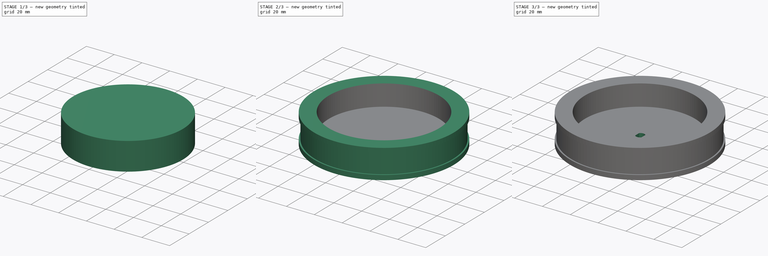
[diagram: build sequence overview — one tinted view per stage of 3, left to right]
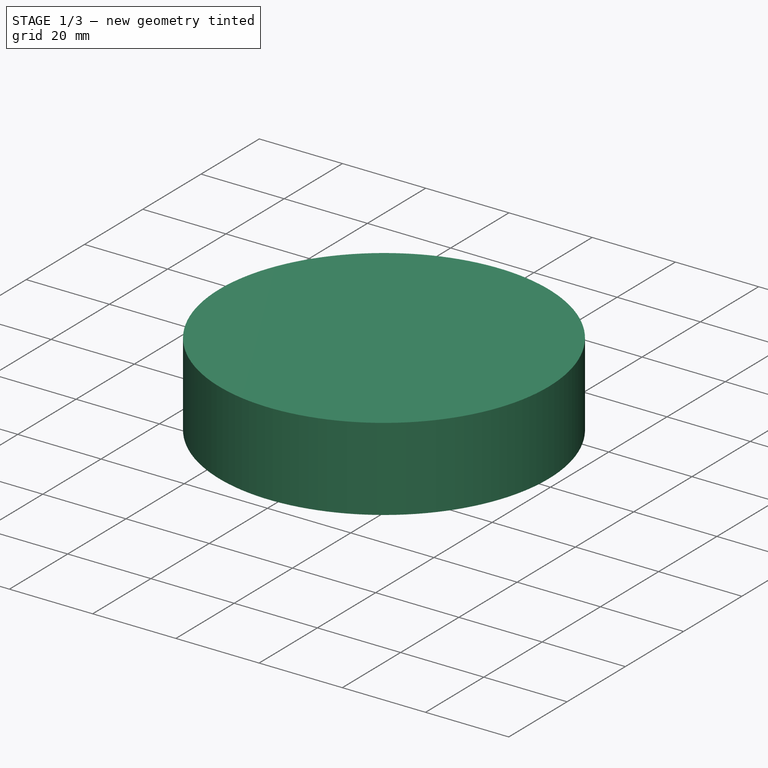
[diagram: stage 1 of 3 — iso view after this stage's code; geometry added in this stage tinted green]
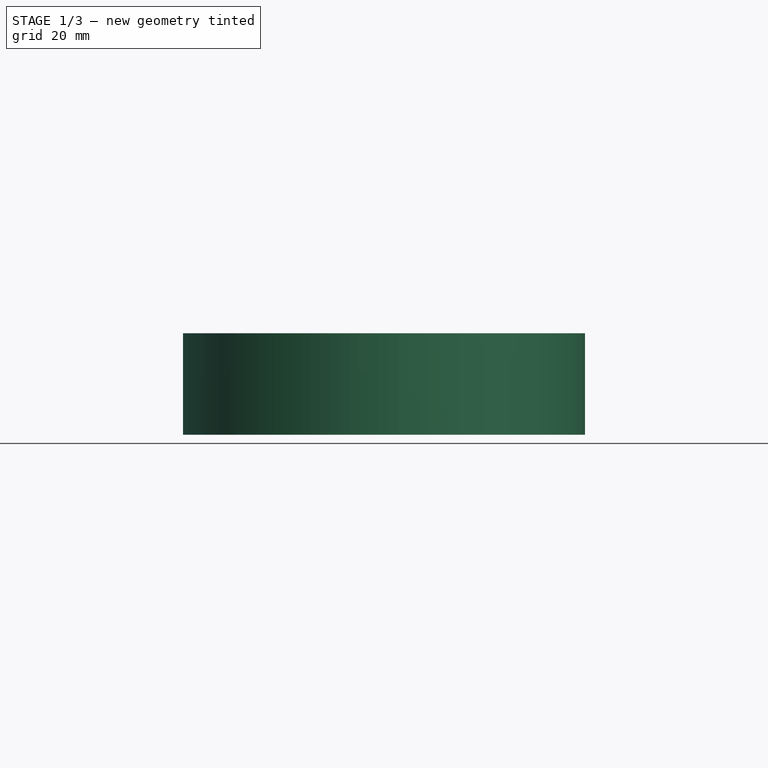
[diagram: stage 1 of 3 — front view after this stage's code; geometry added in this stage tinted green]
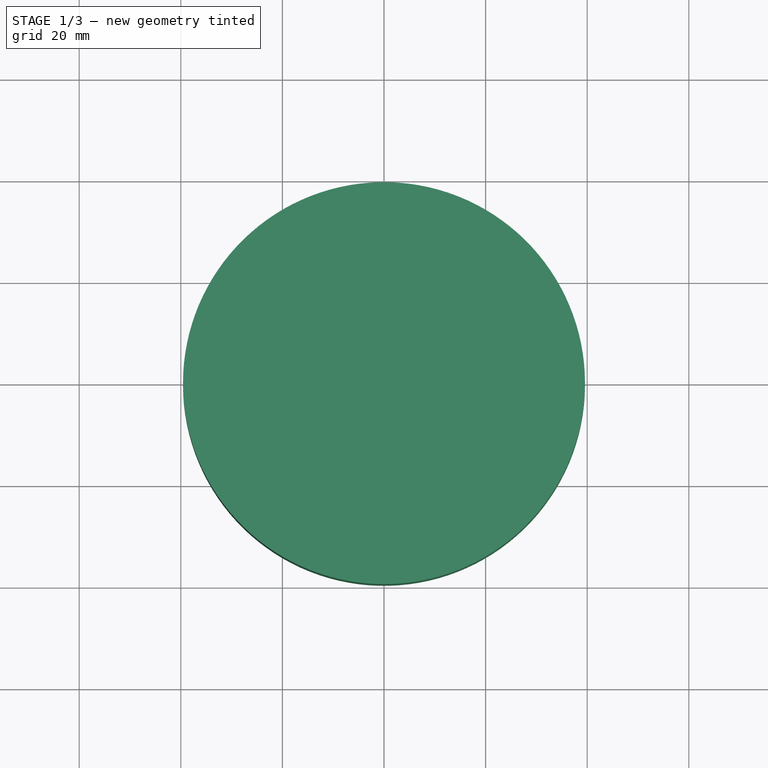
[diagram: stage 1 of 3 — top view after this stage's code; geometry added in this stage tinted green]
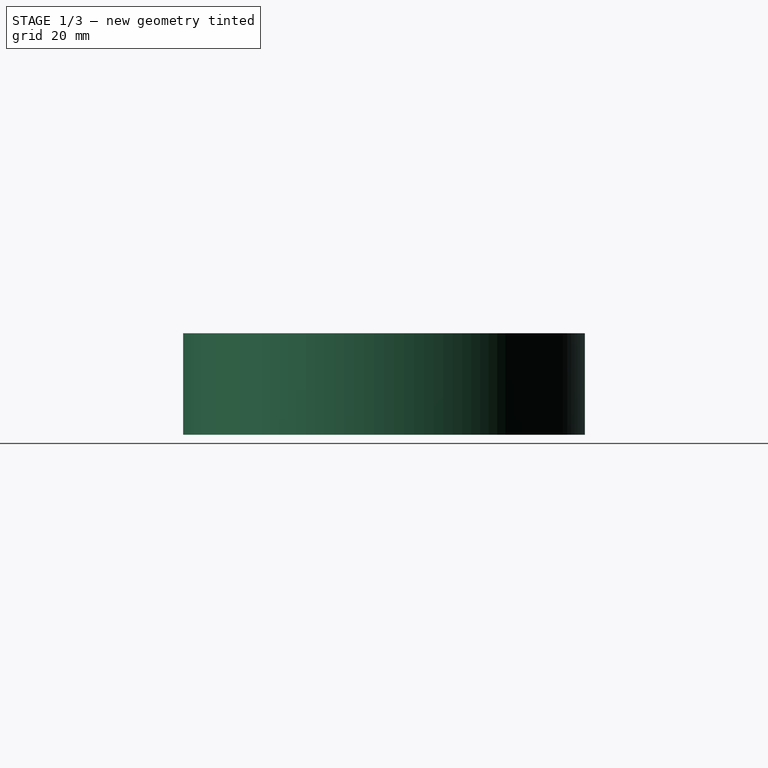
[diagram: stage 1 of 3 — right view after this stage's code; geometry added in this stage tinted green]
FCSTD DOCUMENT  (FreeCAD 0.20R29410 (Git))
Label: Rueda trasera
License: Creative Commons Attribution-ShareAlike
LicenseURL: http://creativecommons.org/licenses/by-sa/4.0/
objects: Sketcher::SketchObject×3, Part::Extrusion×2, Part::Cut×2, Part::Revolution×1
note: 8 computed .brp shape members not serialized (recipe doc carries the construction recipe); baked Part::Feature solids carry a one-line shape summary decoded from their .brp

FEATURE [Sketcher::SketchObject] Sketch
  FullyConstrained = false
  Placement = pos=(0,0,0) rot=(1,0,0;1.5708rad)
  sketch-geometry (8):
    g0: LineSegment StartX=0 StartY=0 StartZ=0 EndX=50.12 EndY=0 EndZ=0
    g1: LineSegment StartX=50.12 StartY=0 StartZ=0 EndX=50.12 EndY=3.35549 EndZ=0
    g2: LineSegment StartX=0 StartY=0 StartZ=0 EndX=0 EndY=20.92 EndZ=0
    g3: LineSegment StartX=0 StartY=20.92 StartZ=0 EndX=50.12 EndY=20.92 EndZ=0
    g4: LineSegment StartX=50.12 StartY=20.92 StartZ=0 EndX=50.12 EndY=17.5645 EndZ=0
    g5: LineSegment StartX=50.12 StartY=17.5645 StartZ=0 EndX=49.1 EndY=17.5645 EndZ=0
    g6: LineSegment StartX=50.12 StartY=3.35549 StartZ=0 EndX=49.1 EndY=3.35549 EndZ=0
    g7: LineSegment StartX=49.1 StartY=3.35549 StartZ=0 EndX=49.1 EndY=17.5645 EndZ=0
  constraints (22):
    c: Coincident(g-1,g0)
    c: PointOnObject(g0,g-1)
    c: Coincident(g0,g1)
    c: Vertical(g1)
    c: DistanceX(g0,g0) = 50.12
    c: Coincident(g0,g2)
    c: PointOnObject(g2,g-2)
    c: Coincident(g2,g3)
    c: Horizontal(g3)
    c: Equal(g0,g3)
    c: Coincident(g4,g3)
    c: Vertical(g4)
    c: Equal(g1,g4)
    c: Coincident(g5,g4)
    c: Horizontal(g5)
    c: Coincident(g6,g1)
    c: Horizontal(g6)
    c: Coincident(g7,g6)
    c: Coincident(g7,g5)
    c: Vertical(g7)
    c: DistanceY(g2,g2) = 20.92
    c: DistanceX(g5,g5) = 1.02
FEATURE [Part::Revolution] Revolve
  Angle = 360
  Axis = (0,0,1)
  Base = (0,0,0)
  FaceMakerClass = Part::FaceMakerBullseye
  Solid = true
  Source = -> Sketch
  Symmetric = false
FEATURE [Sketcher::SketchObject] Sketch001
  FullyConstrained = false
  MapMode = 5
  Placement = pos=(0,0,20.92) rot=(0,0,1;0rad)
  Support = -> [Revolve]
  sketch-geometry (1):
    g0: Circle CenterX=0 CenterY=0 CenterZ=0 NormalX=0 NormalY=0 NormalZ=1 AngleXU=0 Radius=39.5662
  constraints (1):
    c: Coincident(g0,g-1)
FEATURE [Part::Extrusion] Extrude
  Base = -> Sketch001
  Dir = (0,0,1)
  DirMode = 2
  FaceMakerClass = Part::FaceMakerBullseye
  LengthFwd = 20
  LengthRev = 0
  Placement = pos=(0,0,-15.1) rot=(0,0,1;0rad)
  Solid = true
  Symmetric = false
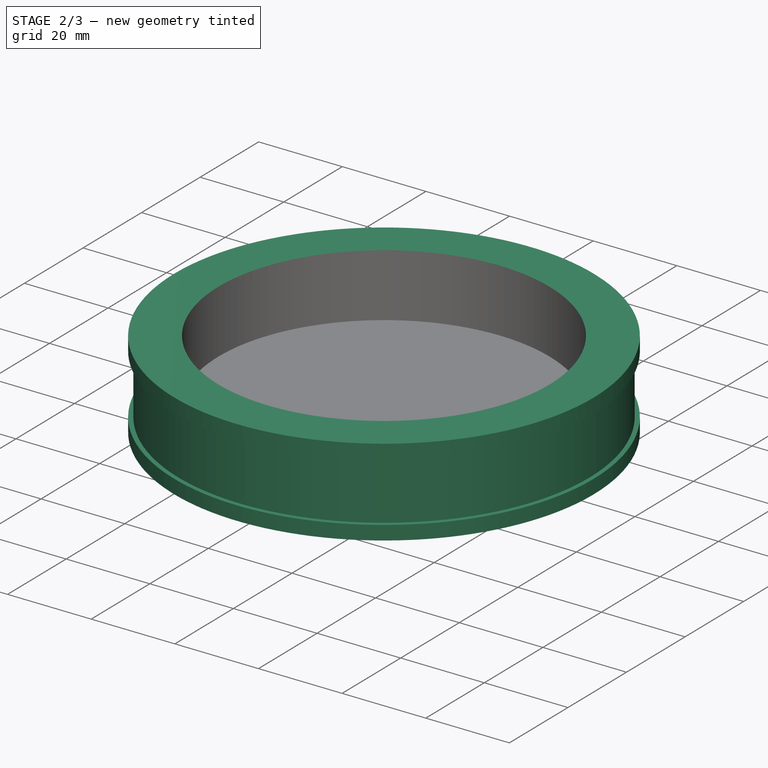
[diagram: stage 2 of 3 — iso view after this stage's code; geometry added in this stage tinted green]
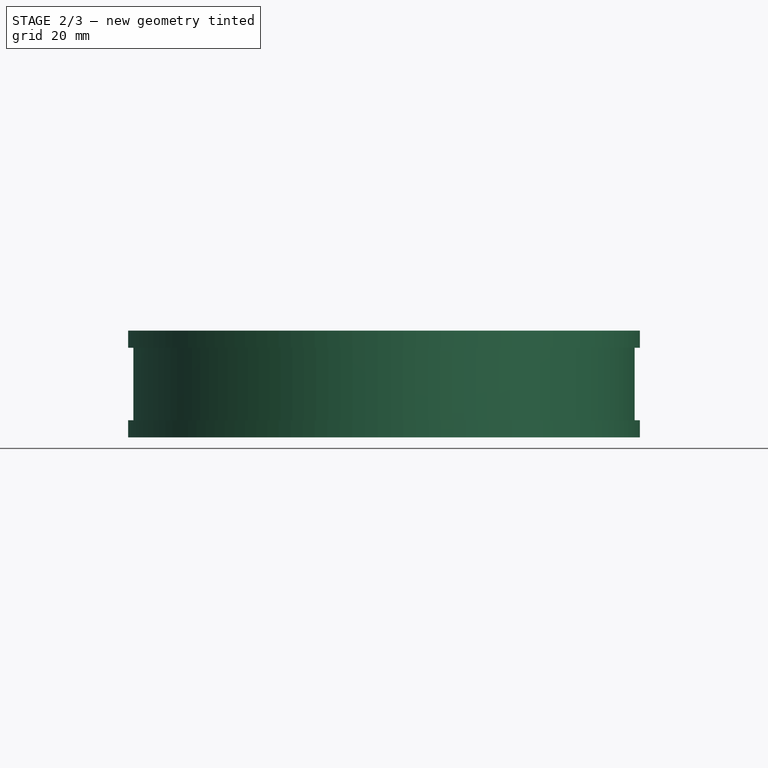
[diagram: stage 2 of 3 — front view after this stage's code; geometry added in this stage tinted green]
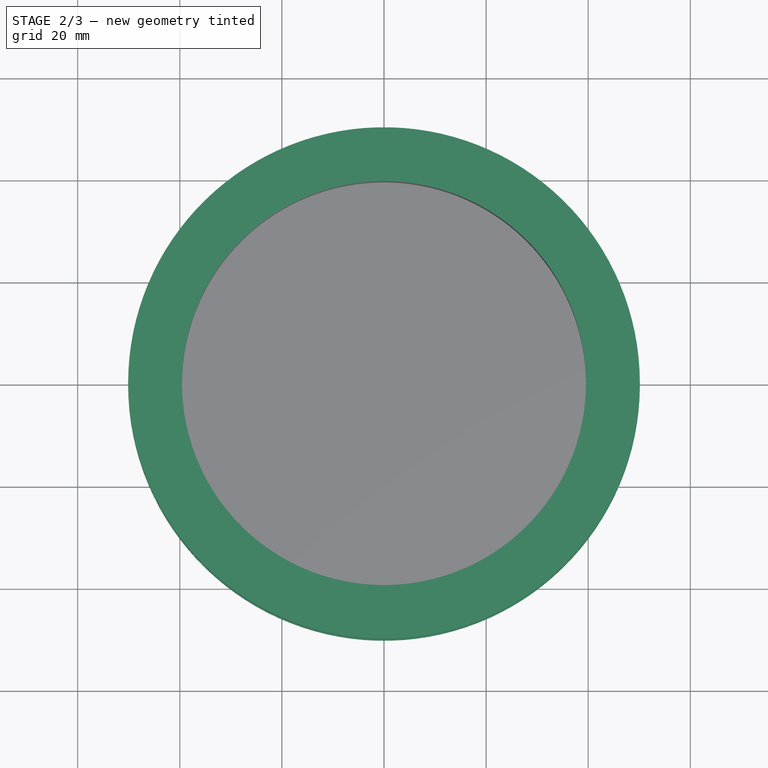
[diagram: stage 2 of 3 — top view after this stage's code; geometry added in this stage tinted green]
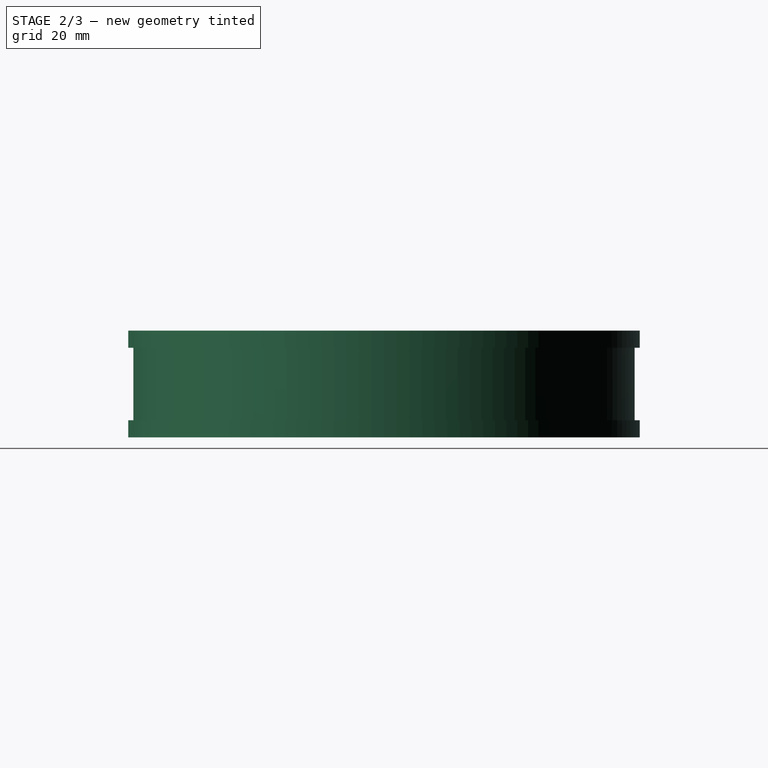
[diagram: stage 2 of 3 — right view after this stage's code; geometry added in this stage tinted green]
FEATURE [Part::Cut] Cut
  Base = -> Revolve
  Refine = true
  Tool = -> Extrude
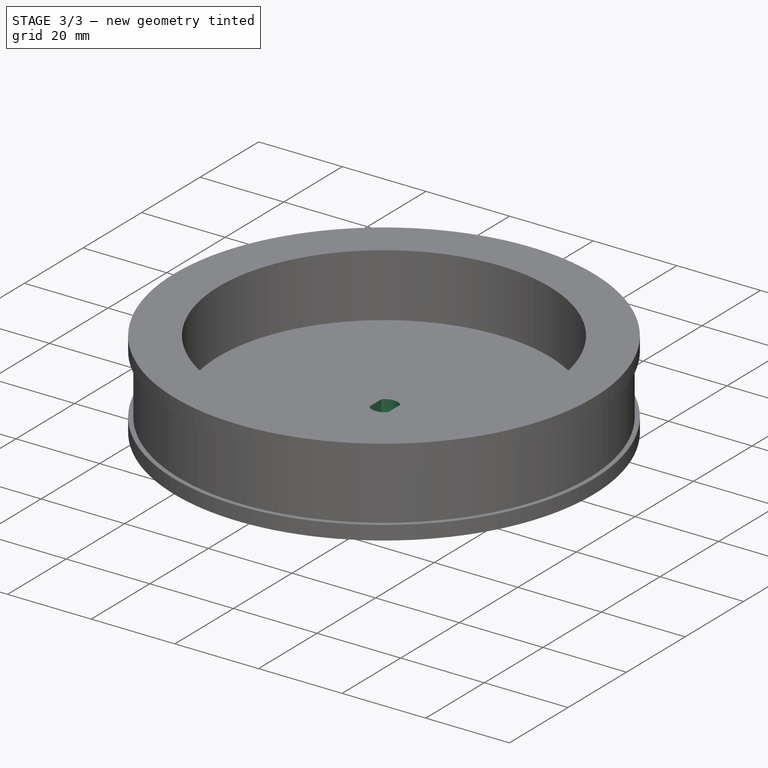
[diagram: stage 3 of 3 — iso view after this stage's code; geometry added in this stage tinted green]
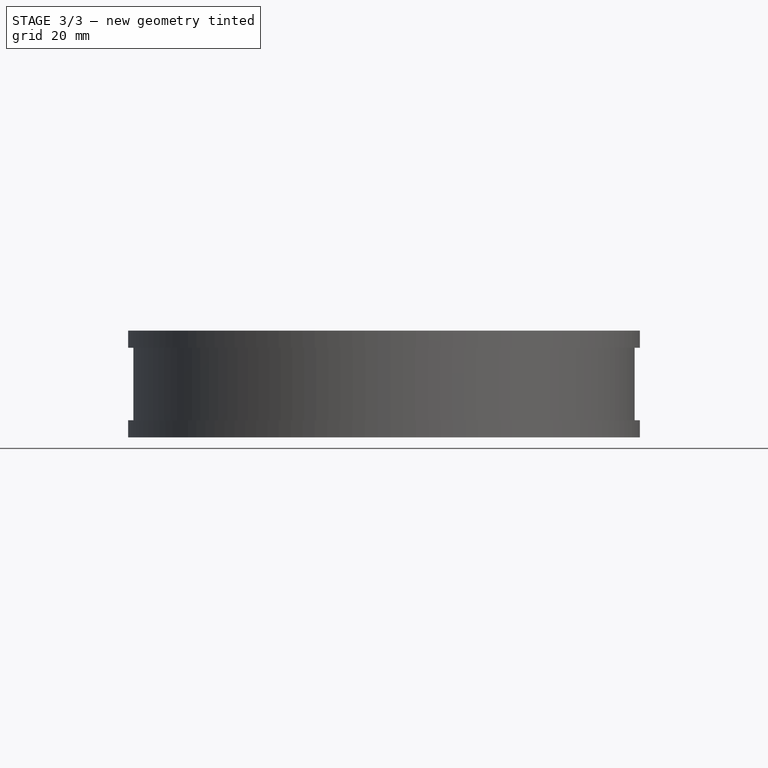
[diagram: stage 3 of 3 — front view after this stage's code; geometry added in this stage tinted green]
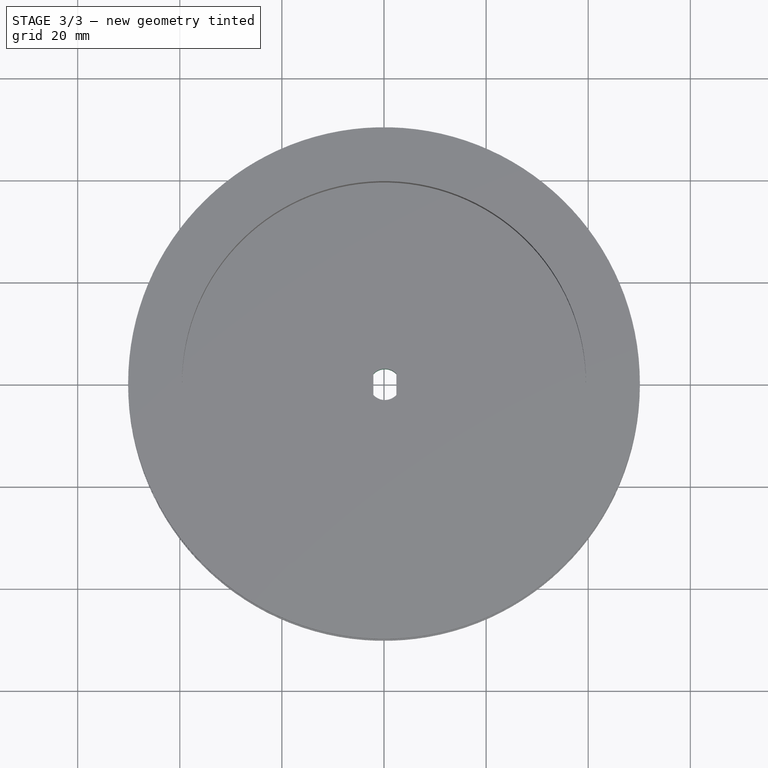
[diagram: stage 3 of 3 — top view after this stage's code; geometry added in this stage tinted green]
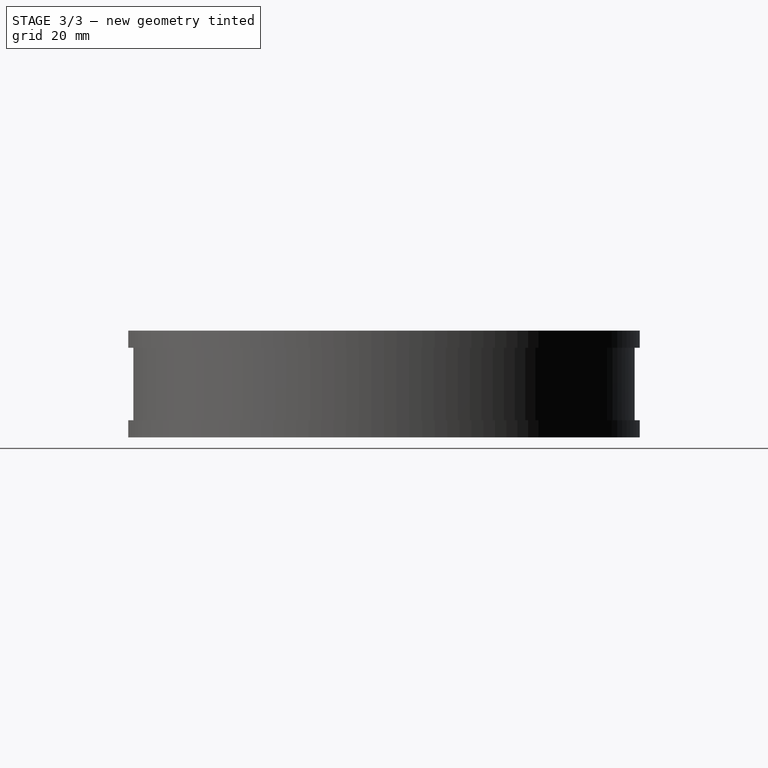
[diagram: stage 3 of 3 — right view after this stage's code; geometry added in this stage tinted green]
FEATURE [Sketcher::SketchObject] Sketch021
  FullyConstrained = false
  MapMode = 5
  Placement = pos=(-4e-15,-17.4,11) rot=(0,0.707107,0.707107;3.14159rad)
  sketch-geometry (9):
    g0: LineSegment StartX=-2.055 StartY=-8.92183 StartZ=0 EndX=2.055 EndY=-8.92183 EndZ=0
    g1: LineSegment StartX=2.055 StartY=-8.92183 StartZ=0 EndX=2.055 EndY=-13.4318 EndZ=0
    g2: LineSegment StartX=2.055 StartY=-13.4318 StartZ=0 EndX=-2.055 EndY=-13.4318 EndZ=0
    g3: LineSegment StartX=-2.055 StartY=-13.4318 StartZ=0 EndX=-2.055 EndY=-8.92183 EndZ=0
    g4: LineSegment StartX=-2.055 StartY=-8.92183 StartZ=0 EndX=2.055 EndY=-13.4318 EndZ=0
    g5: LineSegment StartX=2.055 StartY=-8.92183 StartZ=0 EndX=-2.055 EndY=-13.4318 EndZ=0
    g6: GeomPoint X=-1.34498e-11 Y=-11.1768 Z=0
    g7: ArcOfCircle CenterX=-1.34498e-11 CenterY=-11.1768 CenterZ=0 NormalX=0 NormalY=0 NormalZ=1 AngleXU=0 Radius=3.05091 StartAngle=2.30982 EndAngle=3.97336
    g8: ArcOfCircle CenterX=-1.34498e-11 CenterY=-11.1768 CenterZ=0 NormalX=0 NormalY=0 NormalZ=1 AngleXU=0 Radius=3.05091 StartAngle=5.45142 EndAngle=7.11495
  constraints (19):
    c: Coincident(g0,g1)
    c: Coincident(g1,g2)
    c: Horizontal(g2)
    c: Coincident(g2,g3)
    c: Coincident(g3,g0)
    c: Coincident(g4,g0)
    c: Coincident(g4,g2)
    c: Coincident(g5,g0)
    c: Coincident(g5,g2)
    c: Symmetric(g4,g4,g6)
    c: Symmetric(g0,g0,g-2)
    c: Coincident(g7,g6)
    c: Coincident(g7,g0)
    c: Coincident(g7,g2)
    c: Coincident(g8,g7)
    c: Coincident(g8,g2)
    c: Coincident(g8,g0)
    c: DistanceX(g0,g0) = 4.11
    c: DistanceY(g1,g1) = 4.51
FEATURE [Part::Extrusion] Extrude019  label="Pieza Clave motor003"
  Base = -> Sketch021
  Dir = (0,1,-2e-16)
  DirMode = 2
  FaceMakerClass = Part::FaceMakerBullseye
  LengthFwd = 40
  LengthRev = 0
  Placement = pos=(-3.1e-15,-1.81e-14,13.85) rot=(0.57735,0.57735,-0.57735;4.18879rad)
  Solid = true
  Symmetric = false
FEATURE [Part::Cut] Cut001
  Base = -> Cut
  Refine = true
  Tool = -> Extrude019
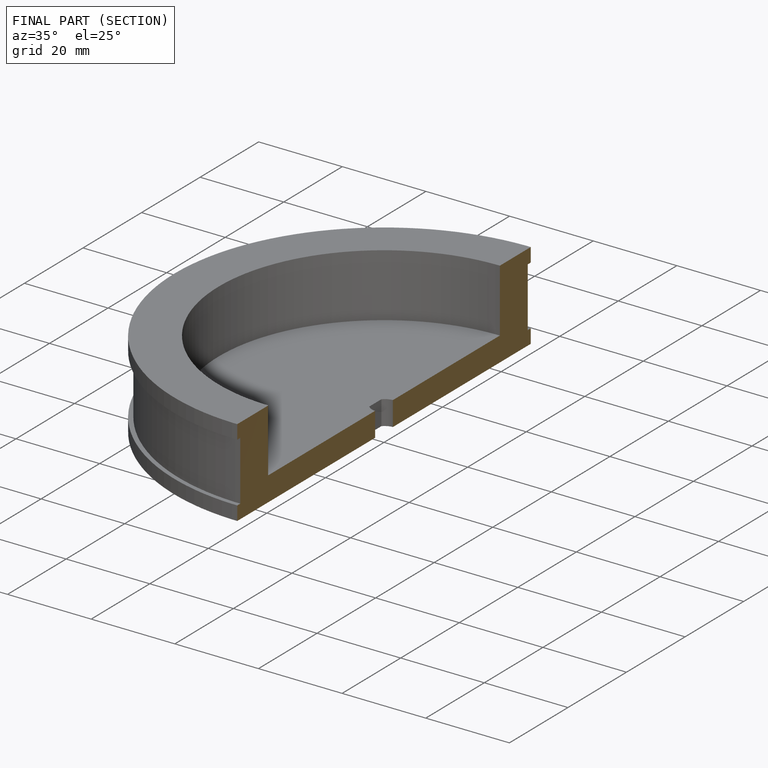
[diagram: finished part — half-section view (interior)]
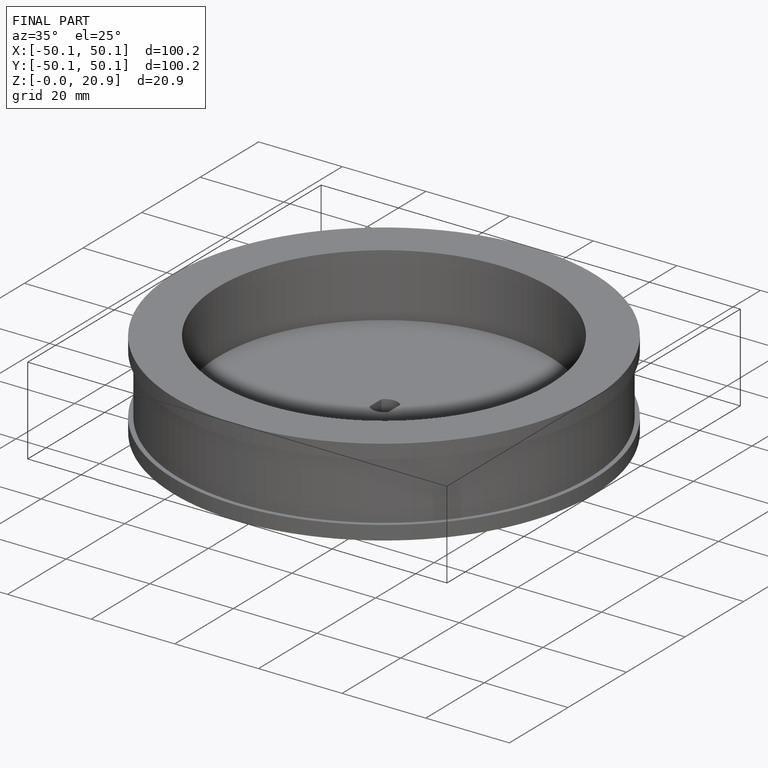
[diagram: finished part — iso view with bounding-box wireframe]
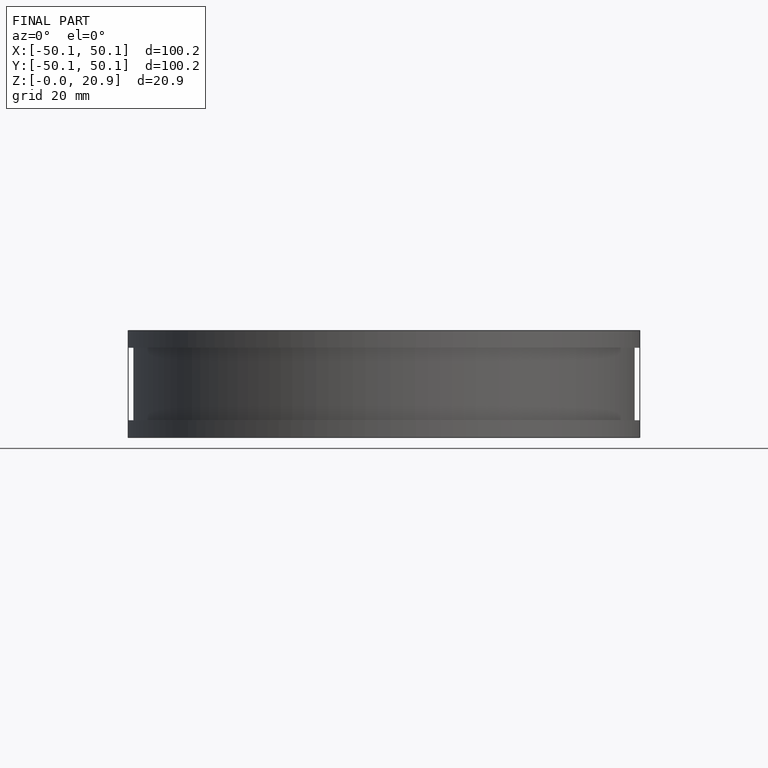
[diagram: finished part — front view with bounding-box wireframe]
